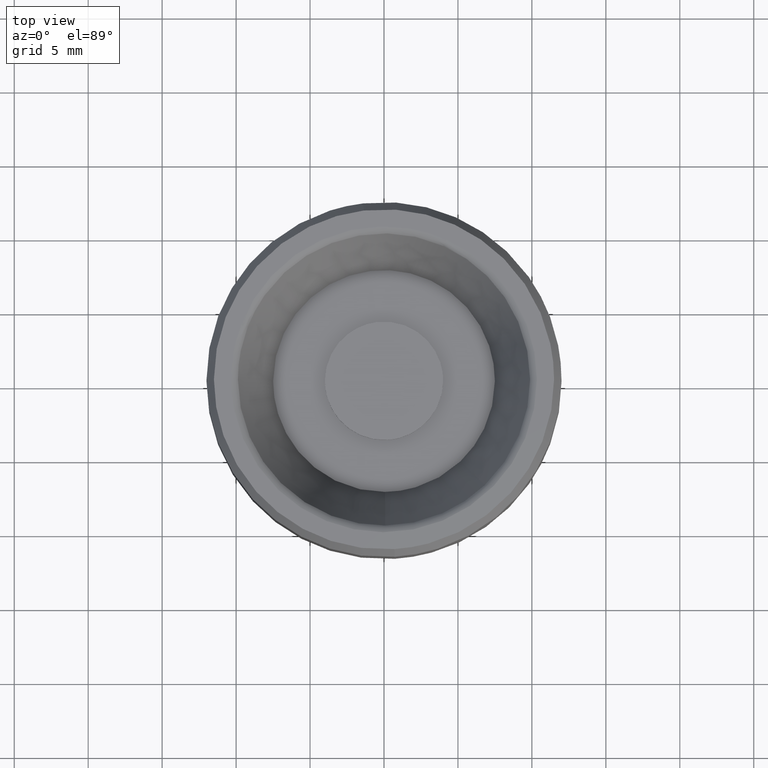
[diagram: clean part render]
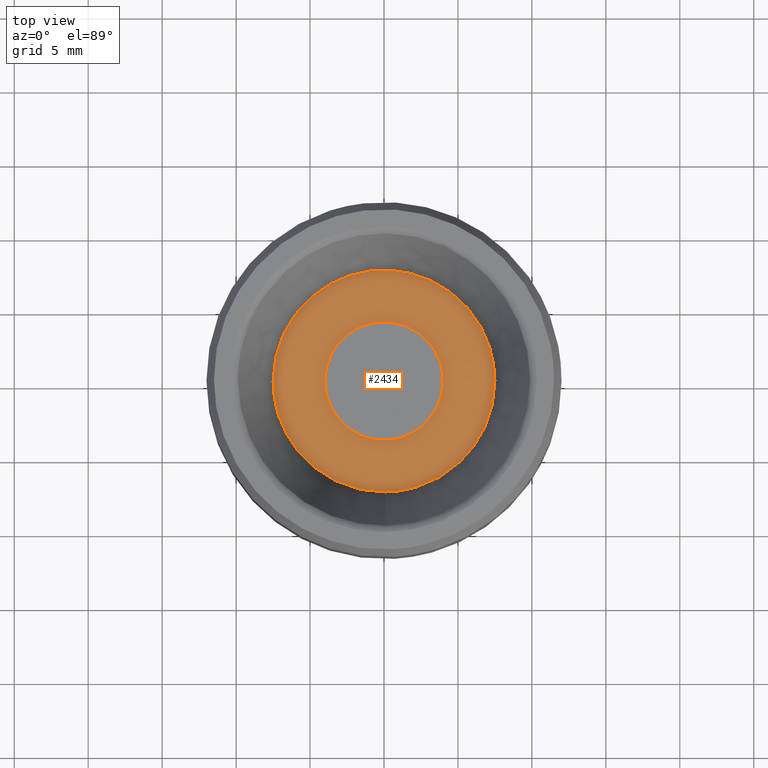
[diagram: same view with one face highlighted and labeled with its STEP entity id]
A machine part, top view. The second image highlights one B-rep face of the part: STEP entity #2434.
In plain terms, the highlighted face is a freeform B-spline surface patch.
Its self-contained STEP definition (entity closure, byte-faithful):
#760=CARTESIAN_POINT('',(0.065449016244894,-7.499714422981713,9.500000000001275));
#761=VERTEX_POINT('',#760);
#767=CARTESIAN_POINT('',(-7.500000000000000,0.0,9.500000000000000));
#768=VERTEX_POINT('',#767);
#769=CARTESIAN_POINT('',(0.065449016244894,-7.499714422981713,9.500000000001275));
#770=CARTESIAN_POINT('',(0.032725131162346,-7.499999999999999,9.500000000000002));
#771=CARTESIAN_POINT('',(0.0,-7.500000000000000,9.500000000000000));
#772=CARTESIAN_POINT('',(-7.500000000000000,-7.500000000000000,9.500000000000000));
#773=CARTESIAN_POINT('',(-7.500000000000000,0.0,9.500000000000000));
#781=(BOUNDED_CURVE()B_SPLINE_CURVE(2,(#769,#770,#771,#772,#773),.UNSPECIFIED.,.F.,.U.)B_SPLINE_CURVE_WITH_KNOTS((3,2,3),(0.748460105664680,0.750000000000000,1.0),.UNSPECIFIED.)CURVE()GEOMETRIC_REPRESENTATION_ITEM()RATIONAL_B_SPLINE_CURVE((0.996414028099636,0.998195901565982,1.0,0.707106781186547,1.0))REPRESENTATION_ITEM(''));
#782=EDGE_CURVE('',#761,#768,#781,.T.);
#784=CARTESIAN_POINT('',(7.500000000000000,0.0,9.500000000000000));
#785=VERTEX_POINT('',#784);
#786=CARTESIAN_POINT('',(-7.500000000000000,0.0,9.500000000000000));
#787=CARTESIAN_POINT('',(-7.500000000000000,7.500000000000000,9.500000000000000));
#788=CARTESIAN_POINT('',(0.0,7.500000000000000,9.500000000000000));
#789=CARTESIAN_POINT('',(7.500000000000000,7.500000000000000,9.500000000000000));
#790=CARTESIAN_POINT('',(7.500000000000000,0.0,9.500000000000000));
#798=(BOUNDED_CURVE()B_SPLINE_CURVE(2,(#786,#787,#788,#789,#790),.UNSPECIFIED.,.F.,.U.)B_SPLINE_CURVE_WITH_KNOTS((3,2,3),(0.0,0.250000000000000,0.500000000000000),.UNSPECIFIED.)CURVE()GEOMETRIC_REPRESENTATION_ITEM()RATIONAL_B_SPLINE_CURVE((1.0,0.707106781186547,1.0,0.707106781186547,1.0))REPRESENTATION_ITEM(''));
#799=EDGE_CURVE('',#768,#785,#798,.T.);
#801=CARTESIAN_POINT('',(5.172294320879913,-5.431148263322724,9.500000000000011));
#802=VERTEX_POINT('',#801);
#803=CARTESIAN_POINT('',(7.500000000000000,0.0,9.500000000000000));
#804=CARTESIAN_POINT('',(7.500000000000000,-3.214383358173770,9.500000000000000));
#805=CARTESIAN_POINT('',(5.172294320879913,-5.431148263322724,9.500000000000011));
#813=(BOUNDED_CURVE()B_SPLINE_CURVE(2,(#803,#804,#805),.UNSPECIFIED.,.F.,.U.)B_SPLINE_CURVE_WITH_KNOTS((3,3),(0.500000000000000,0.628682976150469),.UNSPECIFIED.)CURVE()GEOMETRIC_REPRESENTATION_ITEM()RATIONAL_B_SPLINE_CURVE((1.0,0.849238515635177,0.853680523245777))REPRESENTATION_ITEM(''));
#814=EDGE_CURVE('',#785,#802,#813,.T.);
#852=CARTESIAN_POINT('',(5.172294320879913,-5.431148263322724,9.500000000000011));
#853=CARTESIAN_POINT('',(3.027345860738831,-7.473866340803854,9.500000000000000));
#854=CARTESIAN_POINT('',(0.065449016244894,-7.499714422981713,9.500000000001275));
#862=(BOUNDED_CURVE()B_SPLINE_CURVE(2,(#852,#853,#854),.UNSPECIFIED.,.F.,.U.)B_SPLINE_CURVE_WITH_KNOTS((3,3),(0.628682976150468,0.748460105664680),.UNSPECIFIED.)CURVE()GEOMETRIC_REPRESENTATION_ITEM()RATIONAL_B_SPLINE_CURVE((0.853680523245777,0.857815109939324,0.996414028099635))REPRESENTATION_ITEM(''));
#863=EDGE_CURVE('',#802,#761,#862,.T.);
#895=CARTESIAN_POINT('',(-0.472132249617199,3.972038662808949,9.500000000000494));
#896=VERTEX_POINT('',#895);
#897=CARTESIAN_POINT('',(4.0,0.0,9.500000000000000));
#898=VERTEX_POINT('',#897);
#899=CARTESIAN_POINT('',(-0.472132249617199,3.972038662808950,9.500000000000494));
#900=CARTESIAN_POINT('',(-0.236894109317332,4.0,9.500000000000002));
#901=CARTESIAN_POINT('',(0.0,4.0,9.500000000000000));
#902=CARTESIAN_POINT('',(4.000000000000000,4.000000000000000,9.500000000000000));
#903=CARTESIAN_POINT('',(4.0,0.0,9.500000000000000));
#911=(BOUNDED_CURVE()B_SPLINE_CURVE(2,(#899,#900,#901,#902,#903),.UNSPECIFIED.,.F.,.U.)B_SPLINE_CURVE_WITH_KNOTS((3,2,3),(0.229562673024796,0.250000000000000,0.500000000000000),.UNSPECIFIED.)CURVE()GEOMETRIC_REPRESENTATION_ITEM()RATIONAL_B_SPLINE_CURVE((0.956027145234361,0.976056182073158,1.0,0.707106781186548,1.0))REPRESENTATION_ITEM(''));
#912=EDGE_CURVE('',#896,#898,#911,.T.);
#953=CARTESIAN_POINT('',(0.244187480420900,-3.992539602103018,9.499999999999261));
#954=VERTEX_POINT('',#953);
#960=CARTESIAN_POINT('',(4.0,0.0,9.500000000000000));
#961=CARTESIAN_POINT('',(4.0,-3.762830572896689,9.499999999999998));
#962=CARTESIAN_POINT('',(0.244187480420900,-3.992539602103018,9.499999999999261));
#970=(BOUNDED_CURVE()B_SPLINE_CURVE(2,(#960,#961,#962),.UNSPECIFIED.,.F.,.U.)B_SPLINE_CURVE_WITH_KNOTS((3,3),(0.500000000000000,0.739333250835038),.UNSPECIFIED.)CURVE()GEOMETRIC_REPRESENTATION_ITEM()RATIONAL_B_SPLINE_CURVE((1.0,0.719603655175353,0.976072660183867))REPRESENTATION_ITEM(''));
#971=EDGE_CURVE('',#898,#954,#970,.T.);
#994=CARTESIAN_POINT('',(-4.0,0.0,9.500000000000000));
#995=VERTEX_POINT('',#994);
#996=CARTESIAN_POINT('',(-4.0,0.0,9.500000000000000));
#997=CARTESIAN_POINT('',(-4.0,3.552702327308338,9.500000000000000));
#998=CARTESIAN_POINT('',(-0.472132249617199,3.972038662808950,9.500000000000494));
#1006=(BOUNDED_CURVE()B_SPLINE_CURVE(2,(#996,#997,#998),.UNSPECIFIED.,.F.,.U.)B_SPLINE_CURVE_WITH_KNOTS((3,3),(0.0,0.229562673024796),.UNSPECIFIED.)CURVE()GEOMETRIC_REPRESENTATION_ITEM()RATIONAL_B_SPLINE_CURVE((1.0,0.731050599113390,0.956027145234361))REPRESENTATION_ITEM(''));
#1007=EDGE_CURVE('',#995,#896,#1006,.T.);
#1009=CARTESIAN_POINT('',(0.244187480420900,-3.992539602103018,9.499999999999261));
#1010=CARTESIAN_POINT('',(0.122207704973683,-4.000000000000000,9.500000000000000));
#1011=CARTESIAN_POINT('',(0.0,-4.0,9.500000000000000));
#1012=CARTESIAN_POINT('',(-4.000000000000000,-4.000000000000000,9.500000000000000));
#1013=CARTESIAN_POINT('',(-4.0,0.0,9.500000000000000));
#1021=(BOUNDED_CURVE()B_SPLINE_CURVE(2,(#1009,#1010,#1011,#1012,#1013),.UNSPECIFIED.,.F.,.U.)B_SPLINE_CURVE_WITH_KNOTS((3,2,3),(0.739333250835038,0.750000000000000,1.0),.UNSPECIFIED.)CURVE()GEOMETRIC_REPRESENTATION_ITEM()RATIONAL_B_SPLINE_CURVE((0.976072660183867,0.987503126011195,1.0,0.707106781186548,1.0))REPRESENTATION_ITEM(''));
#1022=EDGE_CURVE('',#954,#995,#1021,.T.);
#2417=CARTESIAN_POINT('',(8.249249970927089,-8.248950187996007,9.500000000000000));
#2418=CARTESIAN_POINT('',(-8.249250373258443,-8.248950187996007,9.500000000000000));
#2419=CARTESIAN_POINT('',(8.249249970927089,8.249236111476995,9.500000000000000));
#2420=CARTESIAN_POINT('',(-8.249250373258443,8.249236111476995,9.500000000000000));
#2421=B_SPLINE_SURFACE_WITH_KNOTS('',1,1,((#2417,#2419),(#2418,#2420)),.UNSPECIFIED.,.F.,.F.,.U.,(2,2),(2,2),(0.0,16.498500344185530),(0.0,16.498186299473002),.UNSPECIFIED.);
#2422=ORIENTED_EDGE('',*,*,#782,.F.);
#2423=ORIENTED_EDGE('',*,*,#863,.F.);
#2424=ORIENTED_EDGE('',*,*,#814,.F.);
#2425=ORIENTED_EDGE('',*,*,#799,.F.);
#2426=EDGE_LOOP('',(#2422,#2423,#2424,#2425));
#2427=FACE_OUTER_BOUND('',#2426,.T.);
#2428=ORIENTED_EDGE('',*,*,#971,.T.);
#2429=ORIENTED_EDGE('',*,*,#1022,.T.);
#2430=ORIENTED_EDGE('',*,*,#1007,.T.);
#2431=ORIENTED_EDGE('',*,*,#912,.T.);
#2432=EDGE_LOOP('',(#2428,#2429,#2430,#2431));
#2433=FACE_BOUND('',#2432,.T.);
#2434=ADVANCED_FACE('',(#2427,#2433),#2421,.F.);